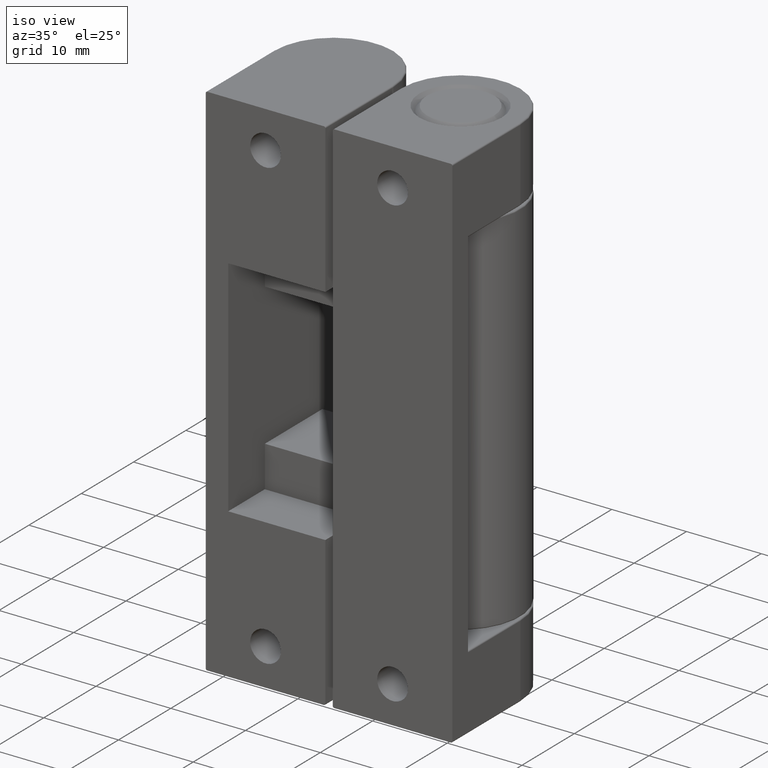
[diagram: clean part render]
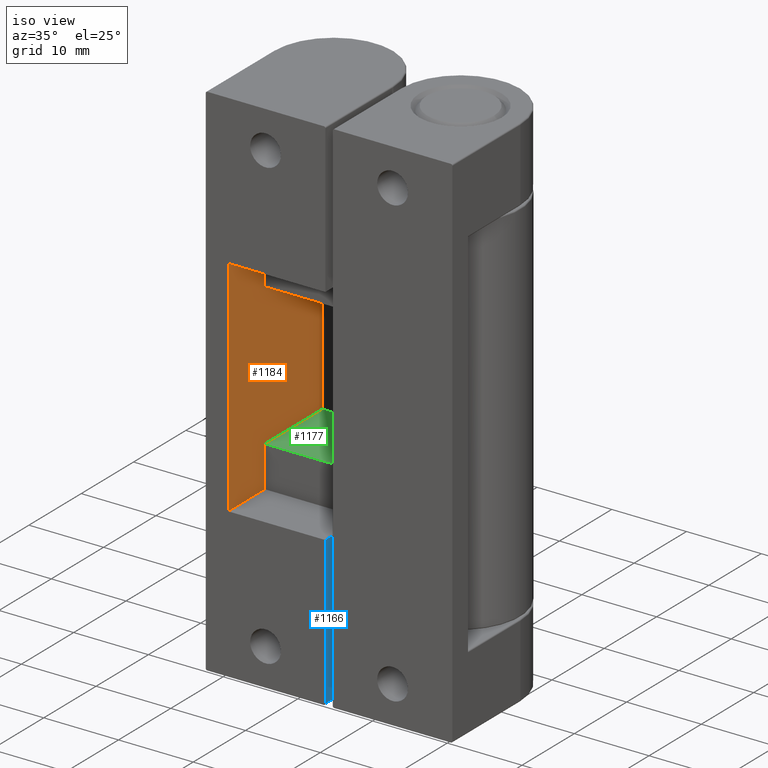
[diagram: same view with three faces highlighted in distinct colors, each labeled with its STEP entity id]
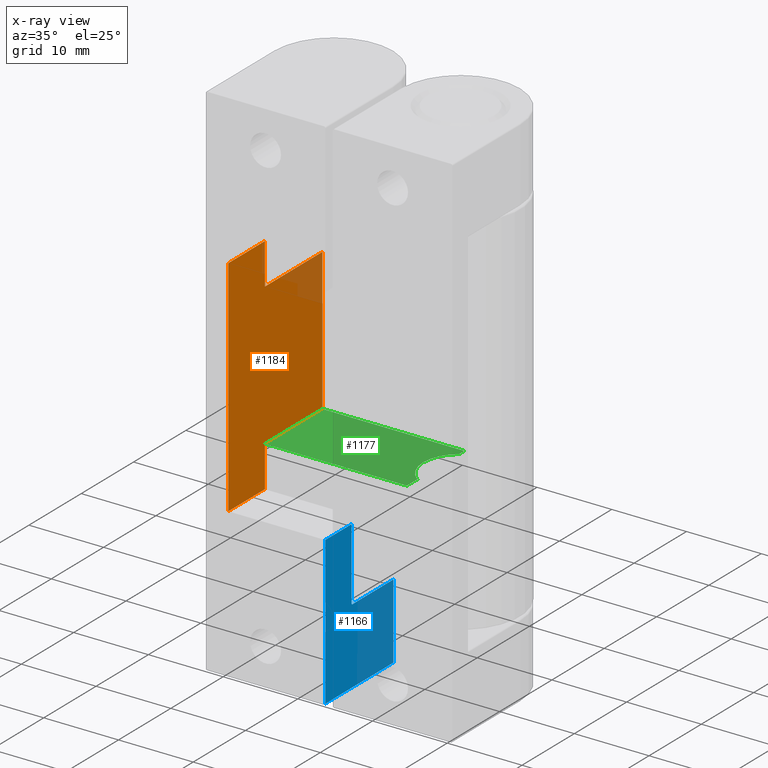
[diagram: x-ray of the same camera — body ghosted, the three highlighted faces saturated]
A machine part, iso view with three faces highlighted in distinct colors.
The next image is the same camera in x-ray (body ghosted, the three faces saturated) — at least one of them is partly hidden behind the body in this view.
Their STEP definitions:

[orange] entity #1184 — the highlighted planar face has unit normal (-1, -0, 0).
#78=PLANE('',#1290);
#134=FACE_OUTER_BOUND('',#208,.T.);
#208=EDGE_LOOP('',(#936,#937,#938,#939,#940,#941,#942,#943));
#313=LINE('',#1910,#404);
#321=LINE('',#1928,#412);
#323=LINE('',#1931,#414);
#326=LINE('',#1937,#417);
#328=LINE('',#1941,#419);
#333=LINE('',#1950,#424);
#334=LINE('',#1952,#425);
#335=LINE('',#1953,#426);
#404=VECTOR('',#1520,11.);
#412=VECTOR('',#1534,11.);
#414=VECTOR('',#1538,19.);
#417=VECTOR('',#1543,5.5);
#419=VECTOR('',#1547,7.);
#424=VECTOR('',#1556,30.);
#425=VECTOR('',#1557,7.);
#426=VECTOR('',#1558,5.5);
#574=VERTEX_POINT('',#1907);
#575=VERTEX_POINT('',#1909);
#581=VERTEX_POINT('',#1925);
#582=VERTEX_POINT('',#1927);
#584=VERTEX_POINT('',#1935);
#585=VERTEX_POINT('',#1939);
#587=VERTEX_POINT('',#1949);
#588=VERTEX_POINT('',#1951);
#704=EDGE_CURVE('',#575,#574,#313,.T.);
#713=EDGE_CURVE('',#581,#582,#321,.T.);
#715=EDGE_CURVE('',#574,#582,#323,.T.);
#718=EDGE_CURVE('',#581,#584,#326,.T.);
#720=EDGE_CURVE('',#585,#584,#328,.T.);
#725=EDGE_CURVE('',#587,#585,#333,.T.);
#726=EDGE_CURVE('',#587,#588,#334,.T.);
#727=EDGE_CURVE('',#588,#575,#335,.T.);
#936=ORIENTED_EDGE('',*,*,#725,.F.);
#937=ORIENTED_EDGE('',*,*,#726,.T.);
#938=ORIENTED_EDGE('',*,*,#727,.T.);
#939=ORIENTED_EDGE('',*,*,#704,.T.);
#940=ORIENTED_EDGE('',*,*,#715,.T.);
#941=ORIENTED_EDGE('',*,*,#713,.F.);
#942=ORIENTED_EDGE('',*,*,#718,.T.);
#943=ORIENTED_EDGE('',*,*,#720,.F.);
#1184=ADVANCED_FACE('',(#134),#78,.F.);
#1290=AXIS2_PLACEMENT_3D('',#1948,#1554,#1555);
#1520=DIRECTION('',(-3.02788097625043E-16,1.,0.));
#1534=DIRECTION('',(-3.02788097625043E-16,1.,0.));
#1538=DIRECTION('',(0.,0.,1.));
#1543=DIRECTION('',(0.,0.,1.));
#1547=DIRECTION('',(-3.1720657846433E-16,1.,0.));
#1554=DIRECTION('center_axis',(-1.,-3.1720657846433E-16,0.));
#1555=DIRECTION('ref_axis',(0.,0.,1.));
#1556=DIRECTION('',(0.,0.,1.));
#1557=DIRECTION('',(-3.1720657846433E-16,1.,0.));
#1558=DIRECTION('',(0.,0.,1.));
#1907=CARTESIAN_POINT('',(-5.,18.,-44.5));
#1909=CARTESIAN_POINT('',(-4.99999999999999,7.,-44.5));
#1910=CARTESIAN_POINT('',(-4.99999999999999,7.,-44.5));
#1925=CARTESIAN_POINT('',(-4.99999999999999,7.,-25.5));
#1927=CARTESIAN_POINT('',(-5.,18.,-25.5));
#1928=CARTESIAN_POINT('',(-4.99999999999999,7.,-25.5));
#1931=CARTESIAN_POINT('',(-5.,18.,-25.5));
#1935=CARTESIAN_POINT('',(-4.99999999999999,7.,-20.));
#1937=CARTESIAN_POINT('',(-4.99999999999999,7.,-50.));
#1939=CARTESIAN_POINT('',(-4.99999999999999,-6.12323399573658E-17,-20.));
#1941=CARTESIAN_POINT('',(-4.99999999999999,-6.12323399573658E-17,-20.));
#1948=CARTESIAN_POINT('Origin',(-4.99999999999999,-6.12323399573658E-17,
-50.));
#1949=CARTESIAN_POINT('',(-4.99999999999999,-6.12323399573658E-17,-50.));
#1950=CARTESIAN_POINT('',(-4.99999999999999,-6.12323399573651E-17,-25.));
#1951=CARTESIAN_POINT('',(-4.99999999999999,7.,-50.));
#1952=CARTESIAN_POINT('',(-4.99999999999999,-6.12323399573658E-17,-50.));
#1953=CARTESIAN_POINT('',(-4.99999999999999,7.,-50.));

[blue] entity #1166 — the highlighted planar face has unit normal (1, 0, 0).
#68=PLANE('',#1258);
#116=FACE_OUTER_BOUND('',#188,.T.);
#188=EDGE_LOOP('',(#852,#853,#854,#855,#856,#857,#858));
#287=LINE('',#1801,#378);
#296=LINE('',#1847,#387);
#297=LINE('',#1850,#388);
#298=LINE('',#1851,#389);
#299=LINE('',#1853,#390);
#300=LINE('',#1854,#391);
#378=VECTOR('',#1406,9.55000000000001);
#387=VECTOR('',#1453,13.);
#388=VECTOR('',#1456,10.05);
#389=VECTOR('',#1457,7.8);
#390=VECTOR('',#1458,5.);
#391=VECTOR('',#1459,19.8);
#463=CIRCLE('',#1237,0.2);
#533=VERTEX_POINT('',#1783);
#534=VERTEX_POINT('',#1784);
#540=VERTEX_POINT('',#1799);
#551=VERTEX_POINT('',#1837);
#553=VERTEX_POINT('',#1843);
#555=VERTEX_POINT('',#1849);
#556=VERTEX_POINT('',#1852);
#644=EDGE_CURVE('',#533,#534,#463,.F.);
#653=EDGE_CURVE('',#533,#540,#287,.T.);
#674=EDGE_CURVE('',#551,#553,#296,.T.);
#675=EDGE_CURVE('',#555,#551,#297,.T.);
#676=EDGE_CURVE('',#555,#534,#298,.T.);
#677=EDGE_CURVE('',#540,#556,#299,.T.);
#678=EDGE_CURVE('',#556,#553,#300,.T.);
#852=ORIENTED_EDGE('',*,*,#674,.F.);
#853=ORIENTED_EDGE('',*,*,#675,.F.);
#854=ORIENTED_EDGE('',*,*,#676,.T.);
#855=ORIENTED_EDGE('',*,*,#644,.F.);
#856=ORIENTED_EDGE('',*,*,#653,.T.);
#857=ORIENTED_EDGE('',*,*,#677,.T.);
#858=ORIENTED_EDGE('',*,*,#678,.T.);
#1166=ADVANCED_FACE('',(#116),#68,.T.);
#1237=AXIS2_PLACEMENT_3D('',#1785,#1394,#1395);
#1258=AXIS2_PLACEMENT_3D('',#1848,#1454,#1455);
#1394=DIRECTION('center_axis',(-1.,-3.41607084500048E-16,0.));
#1395=DIRECTION('ref_axis',(0.,-0.707106781186555,-0.70710678118654));
#1406=DIRECTION('',(0.,0.,1.));
#1453=DIRECTION('',(3.41607084500048E-16,-1.,0.));
#1454=DIRECTION('center_axis',(1.,3.41607084500048E-16,0.));
#1455=DIRECTION('ref_axis',(3.5527136788005E-16,-1.,0.));
#1456=DIRECTION('',(0.,0.,-1.));
#1457=DIRECTION('',(3.41607084500048E-16,-1.,0.));
#1458=DIRECTION('',(3.41607084500048E-16,-1.,0.));
#1459=DIRECTION('',(0.,0.,-1.));
#1783=CARTESIAN_POINT('',(7.99999999999999,5.,-59.55));
#1784=CARTESIAN_POINT('',(7.99999999999999,5.2,-59.75));
#1785=CARTESIAN_POINT('Origin',(7.99999999999999,5.2,-59.55));
#1799=CARTESIAN_POINT('',(7.99999999999999,5.,-50.));
#1801=CARTESIAN_POINT('',(7.99999999999999,5.,-5.125));
#1837=CARTESIAN_POINT('',(7.99999999999999,13.,-69.8));
#1843=CARTESIAN_POINT('',(8.,3.91886975727153E-15,-69.8));
#1847=CARTESIAN_POINT('',(7.99999999999999,9.75,-69.8));
#1848=CARTESIAN_POINT('Origin',(7.99999999999999,13.,0.));
#1849=CARTESIAN_POINT('',(7.99999999999999,13.,-59.75));
#1850=CARTESIAN_POINT('',(7.99999999999999,13.,0.));
#1851=CARTESIAN_POINT('',(7.99999999999999,13.,-59.75));
#1852=CARTESIAN_POINT('',(8.,3.91886975727153E-15,-50.));
#1853=CARTESIAN_POINT('',(7.99999999999999,6.5,-50.));
#1854=CARTESIAN_POINT('',(8.,3.91886975727153E-15,0.));

[green] entity #1177 — the highlighted planar face has unit normal (0, 0, -1).
#71=PLANE('',#1281);
#127=FACE_OUTER_BOUND('',#201,.T.);
#201=EDGE_LOOP('',(#898,#899,#900,#901,#902,#903));
#311=LINE('',#1906,#402);
#312=LINE('',#1908,#403);
#313=LINE('',#1910,#404);
#314=LINE('',#1912,#405);
#315=LINE('',#1913,#406);
#402=VECTOR('',#1518,0.999999999999996);
#403=VECTOR('',#1519,19.);
#404=VECTOR('',#1520,11.);
#405=VECTOR('',#1521,19.);
#406=VECTOR('',#1522,1.99999999999999);
#487=CIRCLE('',#1282,5.);
#571=VERTEX_POINT('',#1902);
#572=VERTEX_POINT('',#1903);
#573=VERTEX_POINT('',#1905);
#574=VERTEX_POINT('',#1907);
#575=VERTEX_POINT('',#1909);
#576=VERTEX_POINT('',#1911);
#701=EDGE_CURVE('',#571,#572,#487,.T.);
#702=EDGE_CURVE('',#571,#573,#311,.T.);
#703=EDGE_CURVE('',#573,#574,#312,.T.);
#704=EDGE_CURVE('',#575,#574,#313,.T.);
#705=EDGE_CURVE('',#576,#575,#314,.T.);
#706=EDGE_CURVE('',#576,#572,#315,.T.);
#898=ORIENTED_EDGE('',*,*,#701,.F.);
#899=ORIENTED_EDGE('',*,*,#702,.T.);
#900=ORIENTED_EDGE('',*,*,#703,.T.);
#901=ORIENTED_EDGE('',*,*,#704,.F.);
#902=ORIENTED_EDGE('',*,*,#705,.F.);
#903=ORIENTED_EDGE('',*,*,#706,.T.);
#1177=ADVANCED_FACE('',(#127),#71,.F.);
#1281=AXIS2_PLACEMENT_3D('',#1901,#1514,#1515);
#1282=AXIS2_PLACEMENT_3D('',#1904,#1516,#1517);
#1514=DIRECTION('center_axis',(0.,0.,-1.));
#1515=DIRECTION('ref_axis',(-1.,-3.5527136788005E-16,0.));
#1516=DIRECTION('center_axis',(0.,0.,1.));
#1517=DIRECTION('ref_axis',(-1.,0.,0.));
#1518=DIRECTION('',(-3.02788097625043E-16,1.,0.));
#1519=DIRECTION('',(-1.,-3.1720657846433E-16,0.));
#1520=DIRECTION('',(-3.02788097625043E-16,1.,0.));
#1521=DIRECTION('',(-1.,-3.1720657846433E-16,0.));
#1522=DIRECTION('',(-3.02788097625043E-16,1.,0.));
#1901=CARTESIAN_POINT('Origin',(14.,7.00000000000001,-44.5));
#1902=CARTESIAN_POINT('',(14.,17.,-44.5));
#1903=CARTESIAN_POINT('',(14.,8.99999999999999,-44.5));
#1904=CARTESIAN_POINT('Origin',(17.,13.,-44.5));
#1905=CARTESIAN_POINT('',(14.,18.,-44.5));
#1906=CARTESIAN_POINT('',(14.,7.00000000000001,-44.5));
#1907=CARTESIAN_POINT('',(-5.,18.,-44.5));
#1908=CARTESIAN_POINT('',(-5.,18.,-44.5));
#1909=CARTESIAN_POINT('',(-4.99999999999999,7.,-44.5));
#1910=CARTESIAN_POINT('',(-4.99999999999999,7.,-44.5));
#1911=CARTESIAN_POINT('',(14.,7.00000000000001,-44.5));
#1912=CARTESIAN_POINT('',(9.25000000000001,7.00000000000001,-44.5));
#1913=CARTESIAN_POINT('',(14.,7.00000000000001,-44.5));